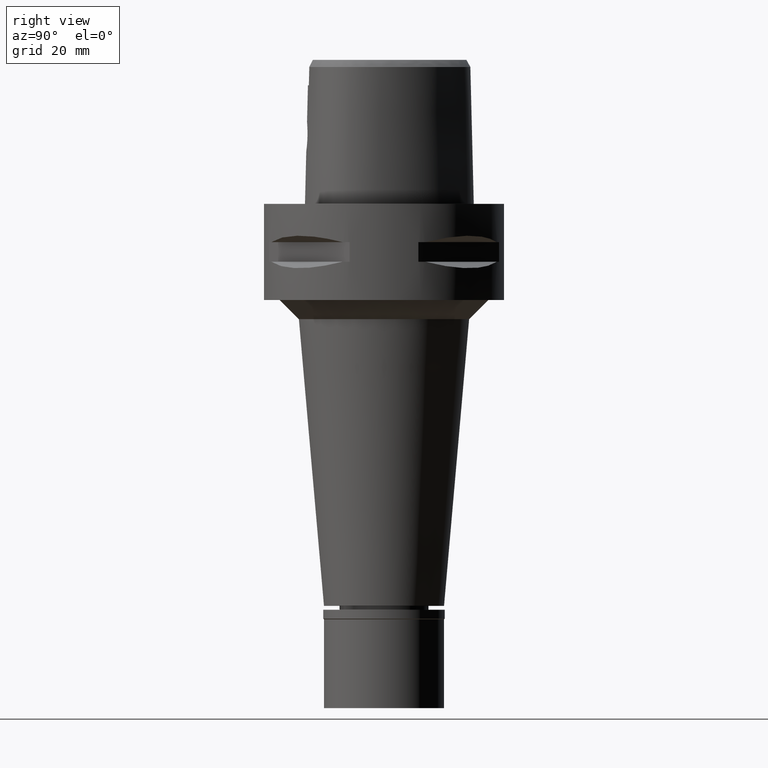
[diagram: clean part render]
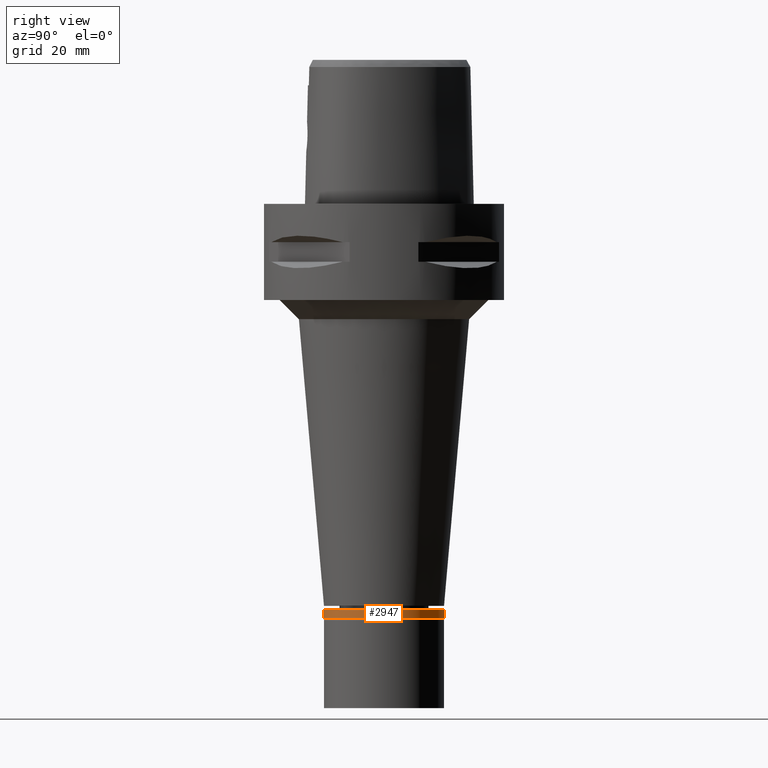
[diagram: same view with one face highlighted and labeled with its STEP entity id]
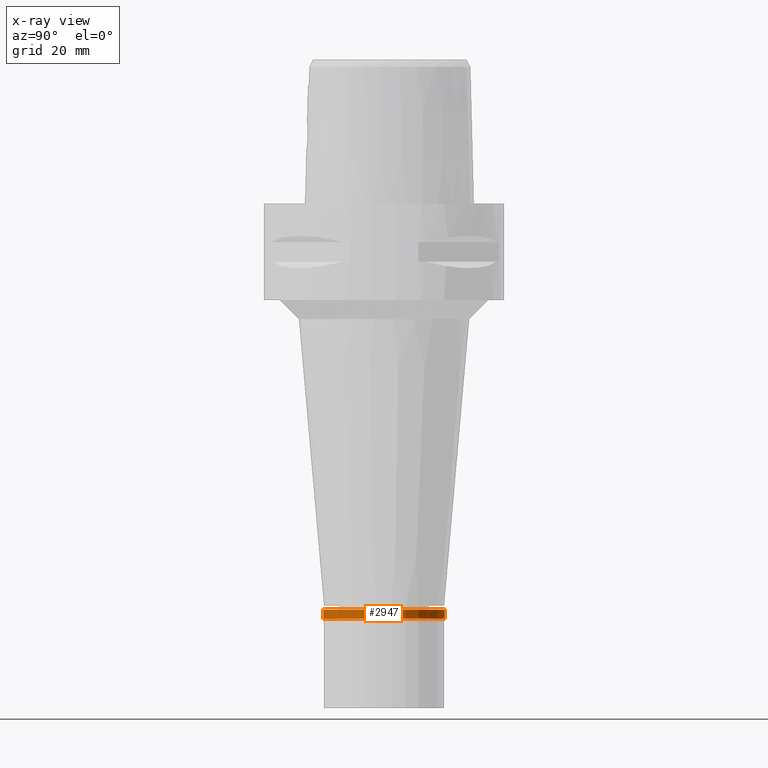
[diagram: x-ray of the same camera — body ghosted, the highlighted face saturated]
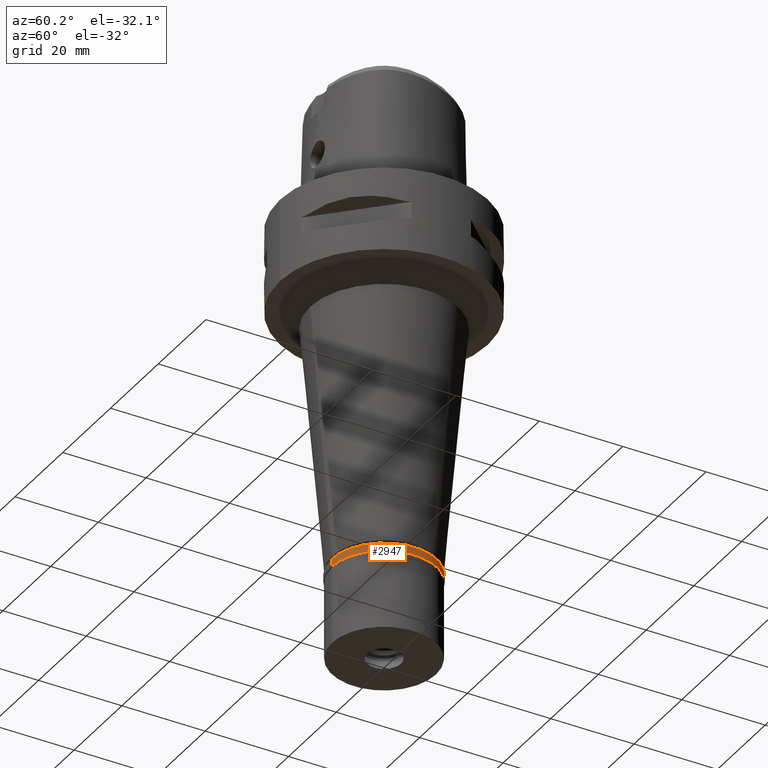
[diagram: same view with one face highlighted and labeled with its STEP entity id]
A machine part, right view. The second image highlights one B-rep face of the part: STEP entity #2947.
The next image is the same camera in x-ray: the body ghosted, the highlighted face saturated — about 0% of this face is hidden behind the body in this view.
A second angle (auxiliary view) of the same face is appended — the face is thin or edge-on in the first view.
In plain terms, the highlighted cylindrical surface (partial cylindrical patch) has radius 12.65 mm, axis along (0, 0, -1).
Its self-contained STEP definition (entity closure, byte-faithful):
#86 = CARTESIAN_POINT ( 'NONE',  ( 0.0000000000000000000, -12.65000000000000036, 0.0000000000000000000 ) ) ;
#156 = EDGE_LOOP ( 'NONE', ( #4049, #3030, #4372, #447 ) ) ;
#193 = VERTEX_POINT ( 'NONE', #3586 ) ;
#214 = EDGE_CURVE ( 'NONE', #4772, #193, #3479, .T. ) ;
#356 = DIRECTION ( 'NONE',  ( 0.0000000000000000000, 0.0000000000000000000, -1.000000000000000000 ) ) ;
#447 = ORIENTED_EDGE ( 'NONE', *, *, #946, .F. ) ;
#468 = CARTESIAN_POINT ( 'NONE',  ( 0.0000000000000000000, 12.65000000000000036, 0.0000000000000000000 ) ) ;
#648 = DIRECTION ( 'NONE',  ( 0.0000000000000000000, 1.000000000000000000, 0.0000000000000000000 ) ) ;
#946 = EDGE_CURVE ( 'NONE', #3093, #193, #3126, .T. ) ;
#1118 = CARTESIAN_POINT ( 'NONE',  ( 0.0000000000000000000, -12.65000000000000036, -1.850000000000000089 ) ) ;
#1190 = CYLINDRICAL_SURFACE ( 'NONE', #2039, 12.65000000000000036 ) ;
#1622 = CARTESIAN_POINT ( 'NONE',  ( 0.0000000000000000000, 0.0000000000000000000, 0.0000000000000000000 ) ) ;
#1785 = AXIS2_PLACEMENT_3D ( 'NONE', #2503, #4365, #4708 ) ;
#1962 = AXIS2_PLACEMENT_3D ( 'NONE', #4722, #2915, #648 ) ;
#1969 = CARTESIAN_POINT ( 'NONE',  ( 0.0000000000000000000, 12.65000000000000036, 0.0000000000000000000 ) ) ;
#2039 = AXIS2_PLACEMENT_3D ( 'NONE', #1622, #356, #2354 ) ;
#2239 = DIRECTION ( 'NONE',  ( 0.0000000000000000000, 0.0000000000000000000, -1.000000000000000000 ) ) ;
#2278 = VECTOR ( 'NONE', #4267, 1000.000000000000000 ) ;
#2354 = DIRECTION ( 'NONE',  ( 0.0000000000000000000, -1.000000000000000000, 0.0000000000000000000 ) ) ;
#2503 = CARTESIAN_POINT ( 'NONE',  ( 0.0000000000000000000, 0.0000000000000000000, -1.850000000000000089 ) ) ;
#2669 = EDGE_CURVE ( 'NONE', #3093, #4341, #3404, .T. ) ;
#2915 = DIRECTION ( 'NONE',  ( 0.0000000000000000000, 0.0000000000000000000, -1.000000000000000000 ) ) ;
#2947 = ADVANCED_FACE ( 'NONE', ( #4689 ), #1190, .T. ) ;
#2981 = EDGE_CURVE ( 'NONE', #4341, #4772, #3873, .T. ) ;
#3030 = ORIENTED_EDGE ( 'NONE', *, *, #2981, .T. ) ;
#3043 = CARTESIAN_POINT ( 'NONE',  ( 0.0000000000000000000, -12.65000000000000036, 0.0000000000000000000 ) ) ;
#3085 = VECTOR ( 'NONE', #2239, 1000.000000000000000 ) ;
#3093 = VERTEX_POINT ( 'NONE', #468 ) ;
#3126 = LINE ( 'NONE', #1969, #2278 ) ;
#3404 = CIRCLE ( 'NONE', #1962, 12.65000000000000036 ) ;
#3479 = CIRCLE ( 'NONE', #1785, 12.65000000000000036 ) ;
#3586 = CARTESIAN_POINT ( 'NONE',  ( 0.0000000000000000000, 12.65000000000000036, -1.850000000000000089 ) ) ;
#3873 = LINE ( 'NONE', #86, #3085 ) ;
#4049 = ORIENTED_EDGE ( 'NONE', *, *, #2669, .T. ) ;
#4267 = DIRECTION ( 'NONE',  ( 0.0000000000000000000, 0.0000000000000000000, -1.000000000000000000 ) ) ;
#4341 = VERTEX_POINT ( 'NONE', #3043 ) ;
#4365 = DIRECTION ( 'NONE',  ( 0.0000000000000000000, 0.0000000000000000000, 1.000000000000000000 ) ) ;
#4372 = ORIENTED_EDGE ( 'NONE', *, *, #214, .T. ) ;
#4689 = FACE_OUTER_BOUND ( 'NONE', #156, .T. ) ;
#4708 = DIRECTION ( 'NONE',  ( 0.0000000000000000000, -1.000000000000000000, 0.0000000000000000000 ) ) ;
#4722 = CARTESIAN_POINT ( 'NONE',  ( 0.0000000000000000000, 0.0000000000000000000, 0.0000000000000000000 ) ) ;
#4772 = VERTEX_POINT ( 'NONE', #1118 ) ;